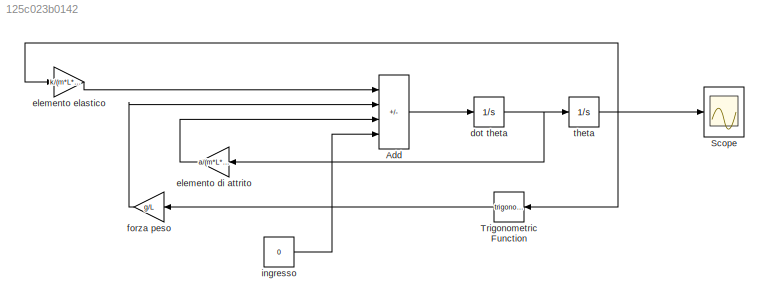
MODEL slx_125c023b0142
KIND model
CONFIG AbsTol = auto
CONFIG EnableMultiTasking = off
CONFIG FixedStep = auto
CONFIG MaxStep = auto
CONFIG MinStep = auto
CONFIG RelTol = 1e-3
CONFIG SampleTimeConstraint = Unconstrained
CONFIG SolverName = VariableStepAuto
CONFIG StartTime = 0.0
CONFIG StopTime = 20
BLOCK [Sum] Add
  IconShape = rectangular
  Inputs = -+-+
  Ports = [4, 1]
BLOCK [Scope] Scope
  Floating = off
  NumInputPorts = 1
  Ports = [1]
  ScopeSpecificationString = Simulink.scopes.TimeScopeBlockCfg('CurrentConfiguration', extmgr.ConfigurationSet(extmgr.Configuration('Core','General UI',true),extmgr.Configuration('Core','Source UI',true),extmgr.Configuration('Sources','WiredSimulink',true),extmgr.Configuration('Visuals','Time Domain',true,'SerializedDisplays',{struct('MinYLimReal','-0.90384','MaxYLimReal','-0.01068','YLabelReal','','MinYLimMag','0.00000','Max...<+1399ch>
BLOCK [Trigonometry] Trigonometric Function
  Ports = [1, 1]
BLOCK [Integrator] dot theta
  Ports = [1, 1]
BLOCK [Gain] elemento di attrito
  Gain = a/(m*L*L)
BLOCK [Gain] elemento elastico
  Gain = k/(m*L*L)
BLOCK [Gain] forza peso
  Gain = g/L
BLOCK [Constant] ingresso
  Value = 0
BLOCK [Integrator] theta
  InitialCondition = 0.7
  Ports = [1, 1]
LINE Add:1 -> dot theta:1
LINE Trigonometric Function:1 -> forza peso:1
NET dot theta:1 -> elemento di attrito:1, theta:1
LINE elemento di attrito:1 -> Add:3
LINE elemento elastico:1 -> Add:1
LINE forza peso:1 -> Add:2
LINE ingresso:1 -> Add:4
NET theta:1 -> Scope:1, Trigonometric Function:1, elemento elastico:1
note: NET lines group one-source signal fan-out (src -> all destinations, sorted); 1:1 wires keep LINE
